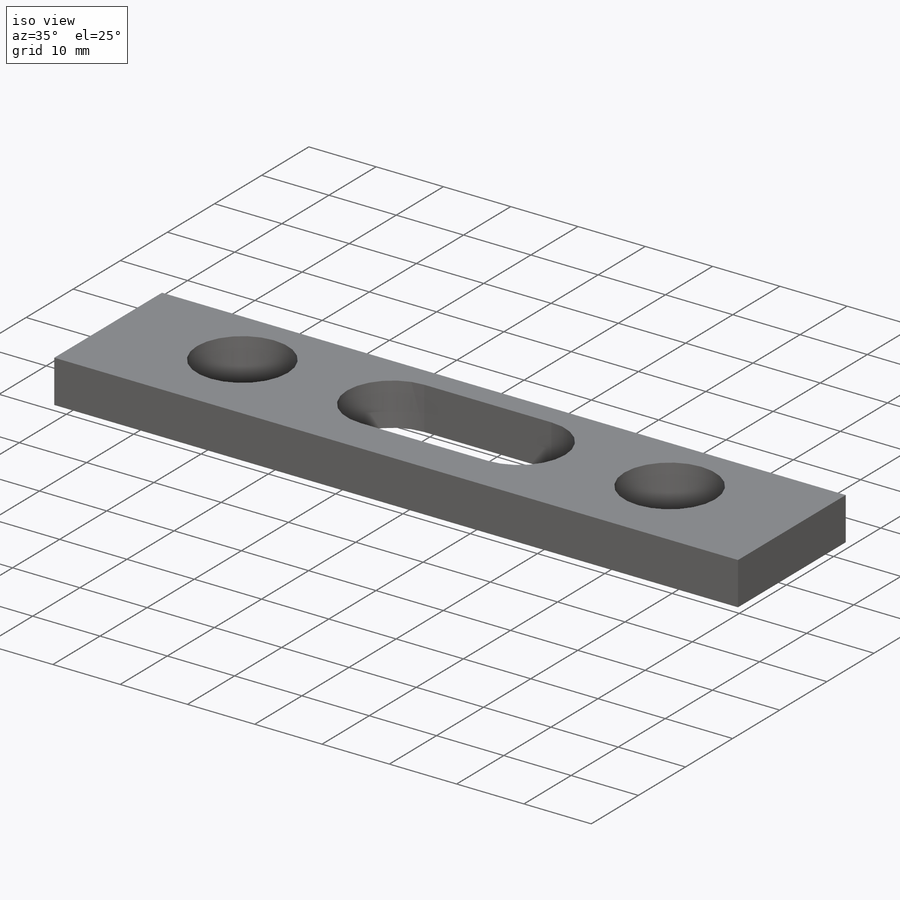
[diagram: iso view]
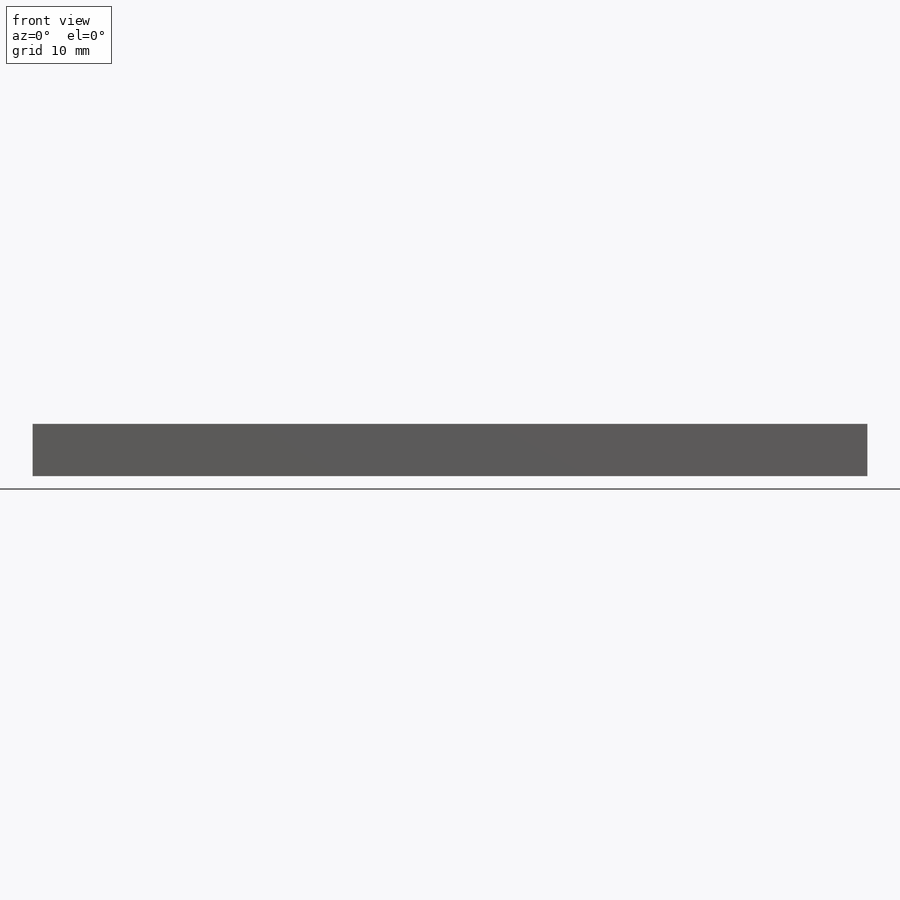
[diagram: front view]
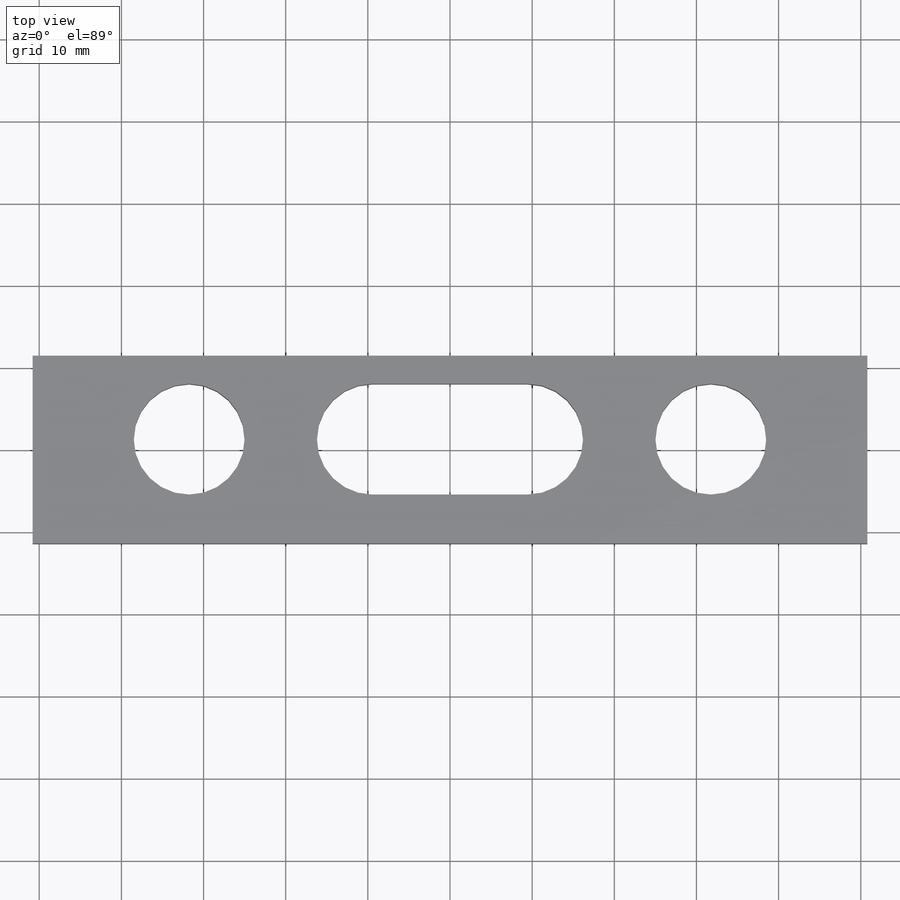
[diagram: top view]
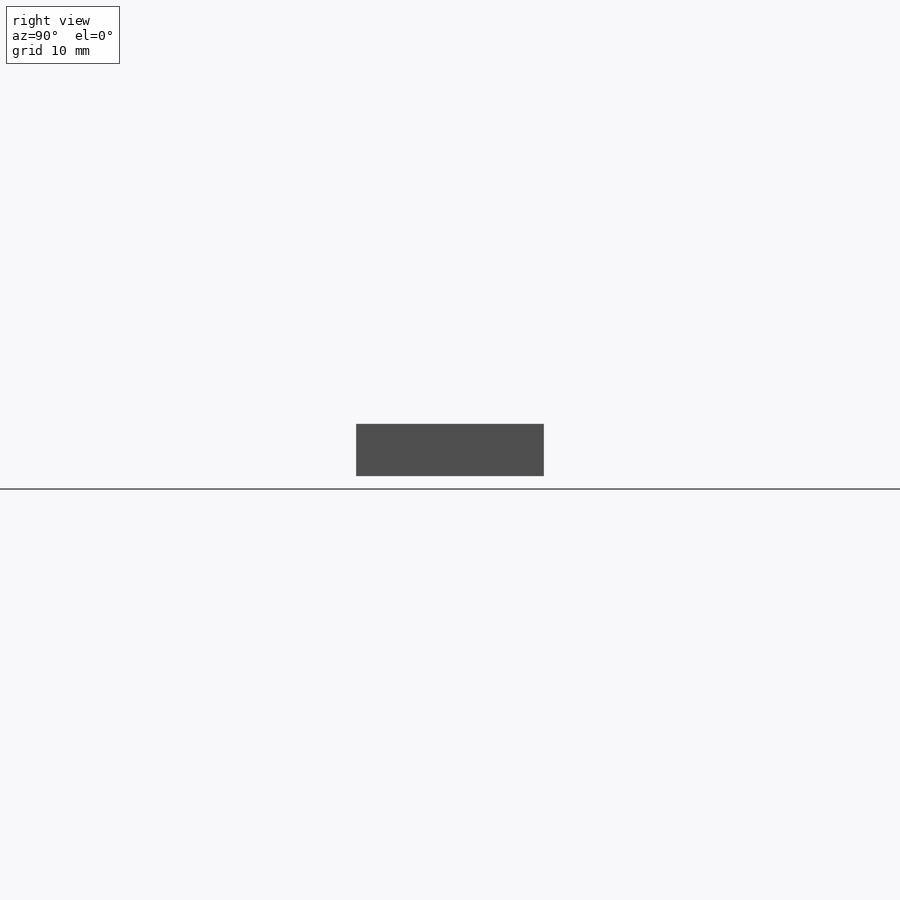
[diagram: right view]
SOLIDWORKS PART (.sldprt)
format: sldprt  version: not decoded by parser v0  size: 379,904 bytes
history: native  units: mm
features: sketch x4, material x1, extrude x1, hole x1, cut_extrude x1 (+14 scaffold rows collapsed)
feature tree (22):
  scaffold x14  (default folders/planes/origin — collapsed)
  material  "AISI 1018 Steel, Cold Rolled"
  sketch  "Sketch1"  dims[c1.D1=11.43mm c1.D2=6.35mm c2.D1=6.35mm c2.D2=22.86mm]
  extrude  "Extrude1"  Depth=50.8mm
  hole  "1/2 Clearance Hole1"  Diameter=13.49248mm Depth=6.35mm
  sketch  "Sketch3"  dims[D1=12.7mm D2=31.75mm D3=31.75mm]
  sketch  "Sketch2"  dims[hole-wizard template sketch: 59 standard entries collapsed; hole parameters kept: c18.Thru Hole Dia.=~13.49248mm c18.Thru Hole Depth=6.35mm]
  sketch  "Sketch6"  dims[D3=~6.746875mm D1=~9.45259mm D2=~18.90518mm]
  cut_extrude  "Cut-Extrude1"  [1 undecoded]
decode coverage: 6 of 7 modeling features carry decoded parameters
note: ~ marks probable driven/reference dimensions
note: 1 parameter value undecoded
note: suppression state not decoded; provenance and decode notes live in map.json
